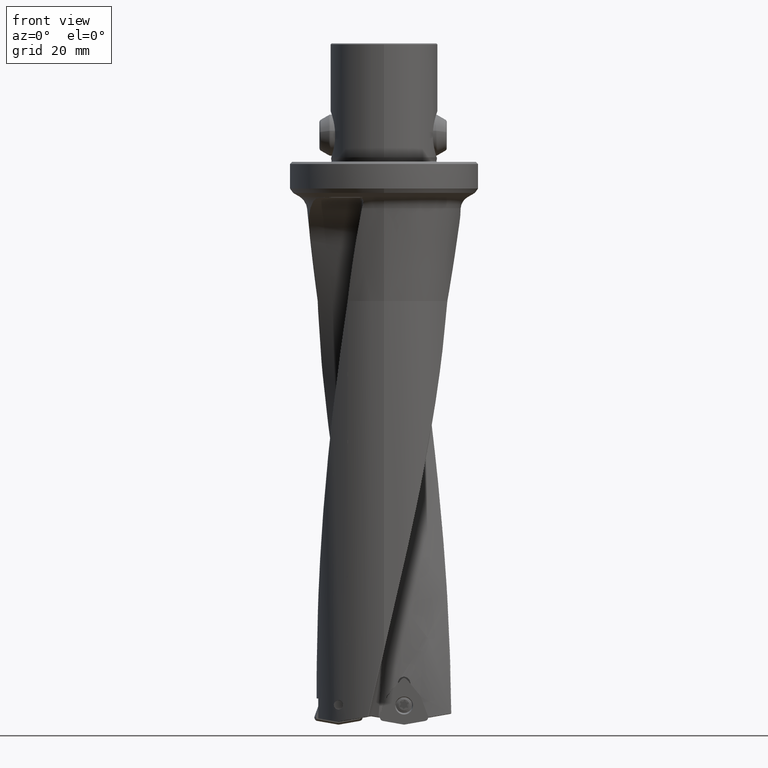
[diagram: clean part render]
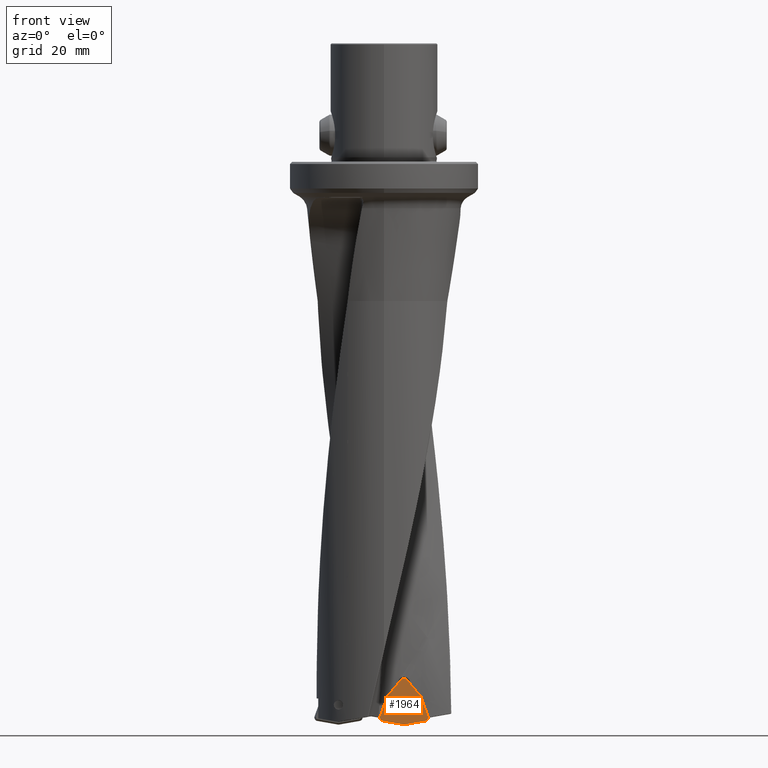
[diagram: same view with one face highlighted and labeled with its STEP entity id]
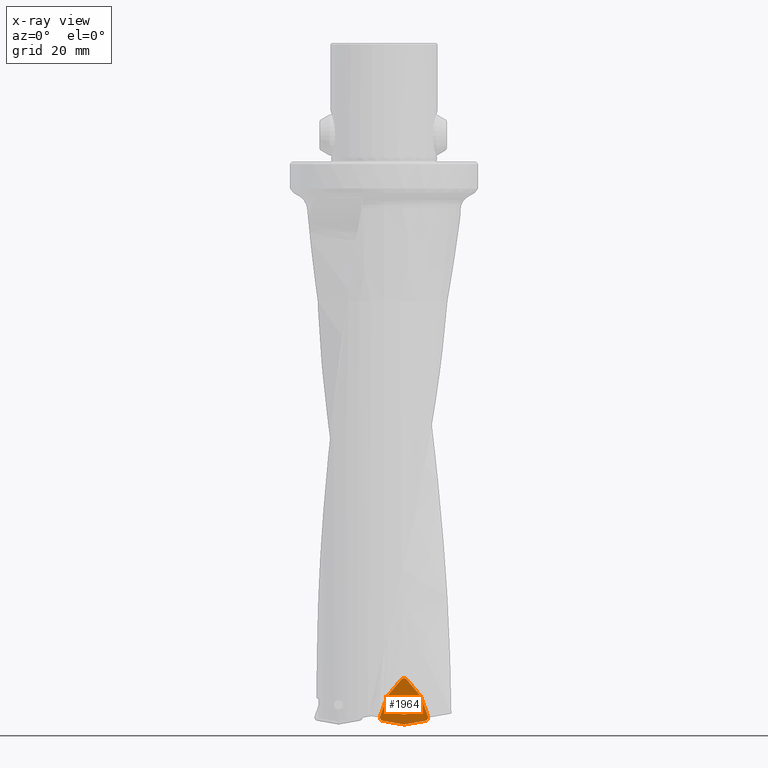
[diagram: x-ray of the same camera — body ghosted, the highlighted face saturated]
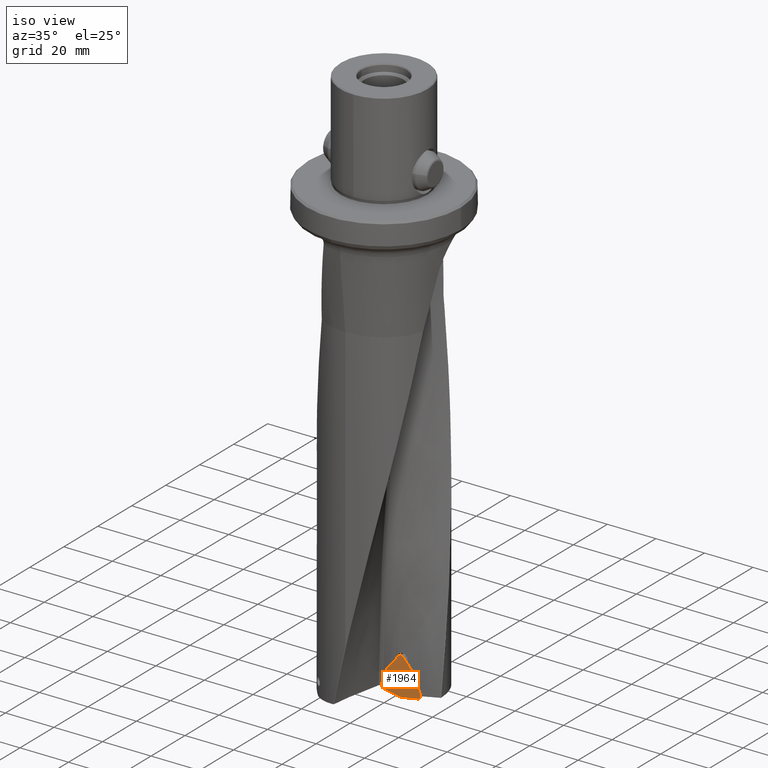
[diagram: same view with one face highlighted and labeled with its STEP entity id]
A machine part, front view. The second image highlights one B-rep face of the part: STEP entity #1964.
The next image is the same camera in x-ray: the body ghosted, the highlighted face saturated — about 0% of this face is hidden behind the body in this view.
A second angle (iso view) of the same face is appended — the face is thin or edge-on in the first view.
In plain terms, the highlighted planar face has unit normal (-0, 1, 0).
Its self-contained STEP definition (entity closure, byte-faithful):
#1918=EDGE_CURVE('NONE',#5168,#2282,#5597,.T.);
#1964=ADVANCED_FACE('NONE',(#5647,#5648),#5649,.F.);
#2154=EDGE_CURVE('NONE',#5176,#5262,#5857,.T.);
#2282=VERTEX_POINT('NONE',#5994);
#2338=EDGE_CURVE('NONE',#2282,#2520,#6054,.T.);
#2520=VERTEX_POINT('NONE',#6257);
#2742=EDGE_CURVE('NONE',#5236,#3892,#6509,.T.);
#2764=VERTEX_POINT('NONE',#6532);
#2802=EDGE_CURVE('NONE',#5262,#5176,#6575,.T.);
#3042=VERTEX_POINT('NONE',#6835);
#3088=EDGE_CURVE('NONE',#4150,#3042,#6888,.T.);
#3108=EDGE_CURVE('NONE',#4026,#5236,#6909,.T.);
#3292=EDGE_CURVE('NONE',#2520,#3642,#7123,.T.);
#3306=EDGE_CURVE('NONE',#4556,#4150,#7138,.T.);
#3642=VERTEX_POINT('NONE',#7513);
#3660=EDGE_CURVE('NONE',#3042,#4026,#7535,.T.);
#3892=VERTEX_POINT('NONE',#7788);
#4026=VERTEX_POINT('NONE',#7935);
#4108=EDGE_CURVE('NONE',#2764,#4556,#8024,.T.);
#4150=VERTEX_POINT('NONE',#8070);
#4556=VERTEX_POINT('NONE',#8521);
#5072=EDGE_CURVE('NONE',#3642,#2764,#9087,.T.);
#5168=VERTEX_POINT('NONE',#9191);
#5176=VERTEX_POINT('NONE',#9201);
#5234=EDGE_CURVE('NONE',#3892,#5168,#9266,.T.);
#5236=VERTEX_POINT('',#9268);
#5262=VERTEX_POINT('NONE',#9298);
#5597=LINE('',#10197,#10198);
#5647=FACE_OUTER_BOUND('',#10323,.T.);
#5648=FACE_BOUND('',#10324,.T.);
#5649=PLANE('',#10325);
#5857=CIRCLE('',#11661,3.03668544549812);
#5994=CARTESIAN_POINT('',(7.6792533317428,0.350000000000006,-174.768677160045));
#6054=CIRCLE('',#12367,1.2);
#6257=CARTESIAN_POINT('',(5.84074666825724,0.349999999999994,-174.768677160045));
#6509=CIRCLE('',#19600,1.2);
#6532=CARTESIAN_POINT('',(-1.30620737491247,0.349999999999944,-187.147564682175));
#6575=CIRCLE('',#19722,3.03668544549812);
#6835=CARTESIAN_POINT('',(6.75999999999996,0.35,-189.999958985474));
#6888=LINE('',#23573,#23574);
#6909=CIRCLE('',#23604,1.2);
#7123=LINE('',#25402,#25403);
#7138=CIRCLE('',#25424,1.2);
#7513=CARTESIAN_POINT('',(1.17590371601897,0.349999999999961,-180.328020507263));
#7535=LINE('',#28845,#28846);
#7788=CARTESIAN_POINT('',(14.8262073749125,0.350000000000056,-187.147564682175));
#7935=CARTESIAN_POINT('',(13.9069540431697,0.35000000000005,-188.73975815778));
#8024=CIRCLE('',#33261,1.2);
#8070=CARTESIAN_POINT('',(-0.38695404316974,0.34999999999995,-188.73975815778));
#8521=CARTESIAN_POINT('',(-1.37857622996939,0.349999999999943,-187.557988854166));
#9087=LINE('',#42139,#42140);
#9191=CARTESIAN_POINT('',(12.344096283981,0.350000000000039,-180.328020507263));
#9201=CARTESIAN_POINT('',(3.72331455450186,0.349999999999979,-183.552));
#9266=LINE('',#42394,#42395);
#9268=CARTESIAN_POINT('',(14.8985762299694,0.350000000000057,-187.557988854166));
#9298=CARTESIAN_POINT('',(9.79668544549811,0.350000000000021,-183.552));
#10197=CARTESIAN_POINT('',(12.344096283981,0.350000000000039,-180.328020507263));
#10198=VECTOR('',#46146,1000.0);
#10323=EDGE_LOOP('',(#46230,#46231,#46232,#46233,#46234,#46235,#46236,#46237,#46238,#46239,#46240));
#10324=EDGE_LOOP('',(#46241,#46242));
#10325=AXIS2_PLACEMENT_3D('',#46243,#46244,#46245);
#11661=AXIS2_PLACEMENT_3D('',#46456,#46457,#46458);
#12367=AXIS2_PLACEMENT_3D('',#46632,#46633,#46634);
#19600=AXIS2_PLACEMENT_3D('',#47208,#47209,#47210);
#19722=AXIS2_PLACEMENT_3D('',#47294,#47295,#47296);
#23573=CARTESIAN_POINT('',(-0.38695404316974,0.34999999999995,-188.73975815778));
#23574=VECTOR('',#47651,1000.0);
#23604=AXIS2_PLACEMENT_3D('',#47674,#47675,#47676);
#25402=CARTESIAN_POINT('',(5.84074666825724,0.349999999999994,-174.768677160045));
#25403=VECTOR('',#47992,1000.0);
#25424=AXIS2_PLACEMENT_3D('',#48011,#48012,#48013);
#28845=CARTESIAN_POINT('',(6.75999999999996,0.35,-189.999958985474));
#28846=VECTOR('',#48453,1000.0);
#33261=AXIS2_PLACEMENT_3D('',#48976,#48977,#48978);
#42139=CARTESIAN_POINT('',(1.17590371601897,0.349999999999961,-180.328020507263));
#42140=VECTOR('',#50151,1000.0);
#42394=CARTESIAN_POINT('',(14.8262073749125,0.350000000000056,-187.147564682175));
#42395=VECTOR('',#50367,1000.0);
#46146=DIRECTION('',(-0.642787609686538,-4.48856448789566E-015,0.766044443118979));
#46230=ORIENTED_EDGE('',*,*,#2338,.T.);
#46231=ORIENTED_EDGE('',*,*,#3292,.T.);
#46232=ORIENTED_EDGE('',*,*,#5072,.T.);
#46233=ORIENTED_EDGE('',*,*,#4108,.T.);
#46234=ORIENTED_EDGE('',*,*,#3306,.T.);
#46235=ORIENTED_EDGE('',*,*,#3088,.T.);
#46236=ORIENTED_EDGE('',*,*,#3660,.T.);
#46237=ORIENTED_EDGE('',*,*,#3108,.T.);
#46238=ORIENTED_EDGE('',*,*,#2742,.T.);
#46239=ORIENTED_EDGE('',*,*,#5234,.T.);
#46240=ORIENTED_EDGE('',*,*,#1918,.T.);
#46241=ORIENTED_EDGE('',*,*,#2802,.T.);
#46242=ORIENTED_EDGE('',*,*,#2154,.T.);
#46243=CARTESIAN_POINT('',(6.76000000000002,0.35,-175.540022291669));
#46244=DIRECTION('',(-6.98296672221876E-015,1.0,1.70251098003921E-043));
#46245=DIRECTION('',(-2.43809121218073E-029,0.0,-1.0));
#46456=CARTESIAN_POINT('',(6.75999999999999,0.35,-183.552));
#46457=DIRECTION('',(-6.98002899955109E-015,1.0,2.43809121218073E-029));
#46458=DIRECTION('',(-1.0,-6.98002899955109E-015,0.0));
#46632=CARTESIAN_POINT('',(6.76000000000002,0.35,-175.540022291669));
#46633=DIRECTION('',(7.00213903063555E-015,-1.0,-2.43809121218073E-029));
#46634=DIRECTION('',(-1.0,-7.00213903063555E-015,0.0));
#47208=CARTESIAN_POINT('',(13.6985762299694,0.350000000000048,-187.557988854166));
#47209=DIRECTION('',(7.00213903063555E-015,-1.0,-2.43809121218073E-029));
#47210=DIRECTION('',(-1.0,-7.00213903063555E-015,0.0));
#47294=CARTESIAN_POINT('',(6.75999999999999,0.35,-183.552));
#47295=DIRECTION('',(-6.98002899955109E-015,1.0,2.43809121218073E-029));
#47296=DIRECTION('',(-1.0,-6.98002899955109E-015,0.0));
#47651=DIRECTION('',(0.984807753012207,6.87687976706728E-015,-0.173648177666934));
#47674=CARTESIAN_POINT('',(13.6985762299694,0.350000000000048,-187.557988854166));
#47675=DIRECTION('',(7.00213903063555E-015,-1.0,-2.43809121218073E-029));
#47676=DIRECTION('',(-1.0,-7.00213903063555E-015,0.0));
#47992=DIRECTION('',(-0.642787609686543,-4.48856448789566E-015,-0.766044443118975));
#48011=CARTESIAN_POINT('',(-0.17857622996939,0.349999999999952,-187.557988854166));
#48012=DIRECTION('',(7.00213903063555E-015,-1.0,-2.43809121218073E-029));
#48013=DIRECTION('',(-1.0,-7.00213903063555E-015,0.0));
#48453=DIRECTION('',(0.984807753012209,6.87687976706729E-015,0.173648177666928));
#48976=CARTESIAN_POINT('',(-0.17857622996939,0.349999999999952,-187.557988854166));
#48977=DIRECTION('',(7.00213903063555E-015,-1.0,-2.43809121218073E-029));
#48978=DIRECTION('',(-1.0,-7.00213903063555E-015,0.0));
#50151=DIRECTION('',(-0.342020143325671,-2.38831527917163E-015,-0.939692620785908));
#50367=DIRECTION('',(-0.342020143325669,-2.38831527917167E-015,0.939692620785908));